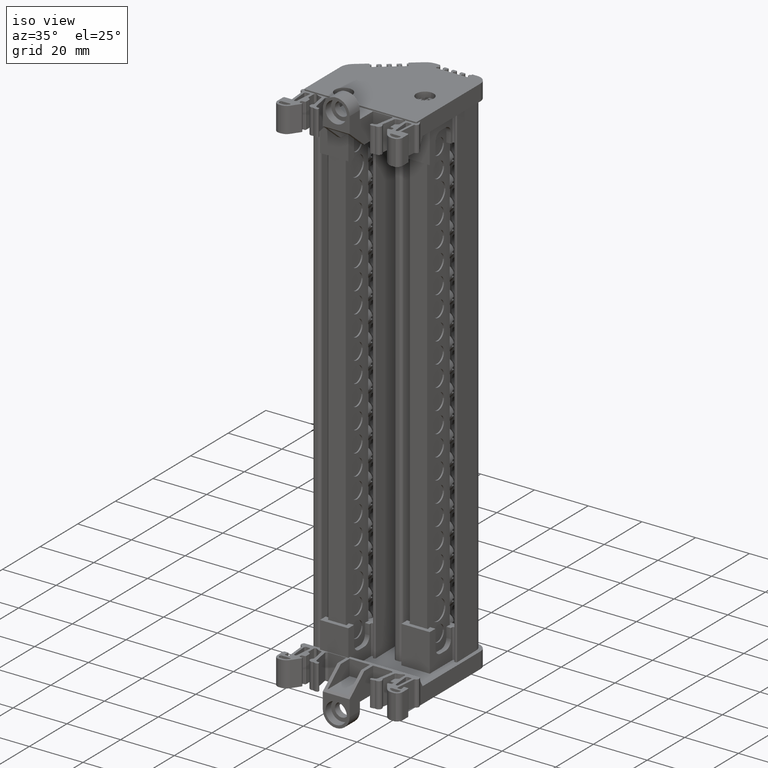
[diagram: clean part render]
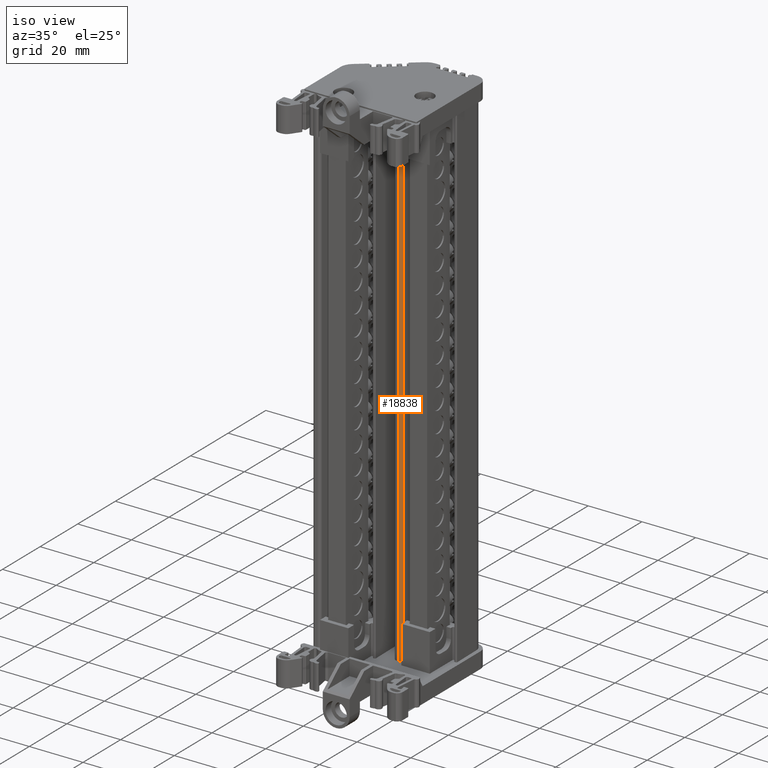
[diagram: same view with one face highlighted and labeled with its STEP entity id]
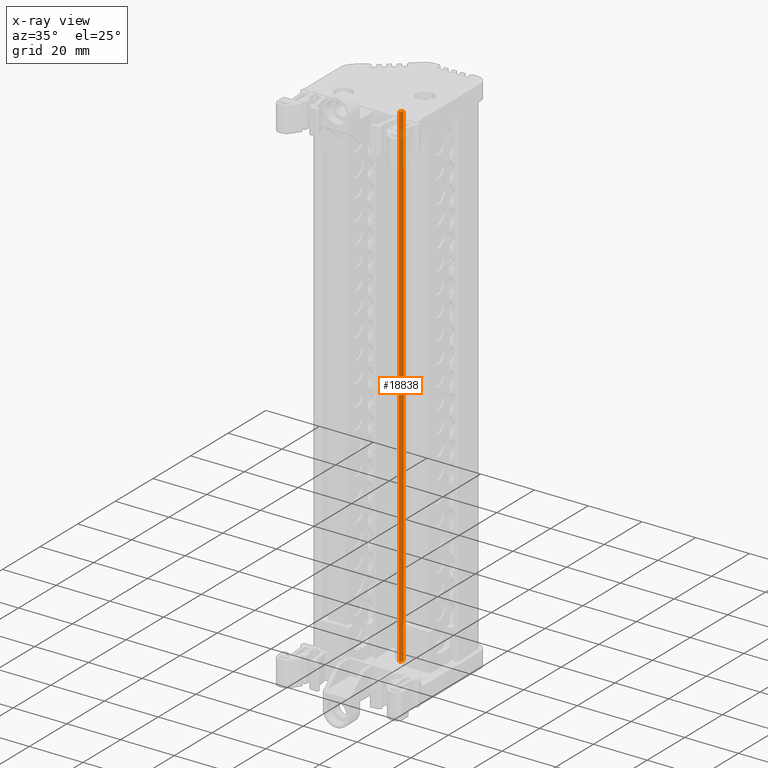
[diagram: x-ray of the same camera — body ghosted, the highlighted face saturated]
A machine part, iso view. The second image highlights one B-rep face of the part: STEP entity #18838.
The next image is the same camera in x-ray: the body ghosted, the highlighted face saturated — about 7% of this face is hidden behind the body in this view.
In plain terms, the highlighted cylindrical surface (edge-blend (fillet) strip) has radius 0.9996 mm, axis along (-0, -0, -1).
Its self-contained STEP definition (entity closure, byte-faithful):
#11541 = VERTEX_POINT ( 'NONE', #64784 ) ;
#11605 = VERTEX_POINT ( 'NONE', #64793 ) ;
#12371 = VERTEX_POINT ( 'NONE', #62976 ) ;
#12418 = VERTEX_POINT ( 'NONE', #62986 ) ;
#15688 = EDGE_CURVE ( 'NONE', #11605, #11541, #70855, .T. ) ;
#15927 = EDGE_CURVE ( 'NONE', #11605, #12371, #69534, .T. ) ;
#16011 = EDGE_CURVE ( 'NONE', #11541, #12418, #68584, .T. ) ;
#18838 = ADVANCED_FACE ( 'NONE', ( #83095 ), #83105, .T. ) ;
#24663 = EDGE_CURVE ( 'NONE', #12418, #12371, #64699, .T. ) ;
#38308 = EDGE_LOOP ( 'NONE', ( #68410, #68440, #68457, #68263 ) ) ;
#59750 = VECTOR ( 'NONE', #68623, 1000.000000000000000 ) ;
#62976 = CARTESIAN_POINT ( 'NONE',  ( -41.11319169614710500, 26.30652312685614500, -36.09779384098966700 ) ) ;
#62986 = CARTESIAN_POINT ( 'NONE',  ( -42.11266066112466400, 25.32434771042215600, -36.09779384098944600 ) ) ;
#64570 = AXIS2_PLACEMENT_3D ( 'NONE', #90429, #90398, #90416 ) ;
#64699 = CIRCLE ( 'NONE', #64570, 0.9996212121125974700 ) ;
#64784 = CARTESIAN_POINT ( 'NONE',  ( -42.11266066106740900, 25.32434771042512600, 148.9721892898926100 ) ) ;
#64793 = CARTESIAN_POINT ( 'NONE',  ( -41.11319169606812100, 26.30652312685635900, 148.9721892898924700 ) ) ;
#68098 = DIRECTION ( 'NONE',  ( -1.000000000000000000, 0.0000000000000000000, 4.164913961304953200E-013 ) ) ;
#68150 = DIRECTION ( 'NONE',  ( -4.181214334512856900E-013, -1.604972357196125300E-014, -1.000000000000000000 ) ) ;
#68155 = CARTESIAN_POINT ( 'NONE',  ( -42.11266066102951600, 26.32396892253785100, 148.9721892898929000 ) ) ;
#68263 = ORIENTED_EDGE ( 'NONE', *, *, #15927, .F. ) ;
#68410 = ORIENTED_EDGE ( 'NONE', *, *, #15688, .T. ) ;
#68440 = ORIENTED_EDGE ( 'NONE', *, *, #16011, .T. ) ;
#68457 = ORIENTED_EDGE ( 'NONE', *, *, #24663, .T. ) ;
#68584 = LINE ( 'NONE', #68611, #59750 ) ;
#68611 = CARTESIAN_POINT ( 'NONE',  ( -42.11266066110002300, 25.32434771042400000, 70.96561495987001000 ) ) ;
#68623 = DIRECTION ( 'NONE',  ( -4.181214334512856900E-013, -1.604972357196125300E-014, -1.000000000000000000 ) ) ;
#69491 = DIRECTION ( 'NONE',  ( -4.316756871969292500E-013, 7.534927149393132500E-015, -1.000000000000000000 ) ) ;
#69520 = CARTESIAN_POINT ( 'NONE',  ( -41.11319169610148100, 26.30652312685644000, 69.96599374775739500 ) ) ;
#69534 = LINE ( 'NONE', #69520, #71833 ) ;
#70855 = CIRCLE ( 'NONE', #70861, 0.9996212121125974700 ) ;
#70861 = AXIS2_PLACEMENT_3D ( 'NONE', #68155, #68150, #68098 ) ;
#71833 = VECTOR ( 'NONE', #69491, 1000.000000000000000 ) ;
#82254 = AXIS2_PLACEMENT_3D ( 'NONE', #83084, #83120, #83076 ) ;
#83076 = DIRECTION ( 'NONE',  ( -1.000000000000000000, 0.0000000000000000000, 4.164913961304953200E-013 ) ) ;
#83084 = CARTESIAN_POINT ( 'NONE',  ( -42.11266066106212900, 26.32396892253659700, 70.96561495986999500 ) ) ;
#83095 = FACE_OUTER_BOUND ( 'NONE', #38308, .T. ) ;
#83105 = CYLINDRICAL_SURFACE ( 'NONE', #82254, 0.9996212121125974700 ) ;
#83120 = DIRECTION ( 'NONE',  ( -4.181214334512856900E-013, -1.604972357196125300E-014, -1.000000000000000000 ) ) ;
#90398 = DIRECTION ( 'NONE',  ( 4.181214334512856900E-013, 1.604972357196125300E-014, 1.000000000000000000 ) ) ;
#90416 = DIRECTION ( 'NONE',  ( -1.000000000000000000, 0.0000000000000000000, 4.164913961304953200E-013 ) ) ;
#90429 = CARTESIAN_POINT ( 'NONE',  ( -42.11266066110689400, 26.32396892253488100, -36.09779384098946100 ) ) ;